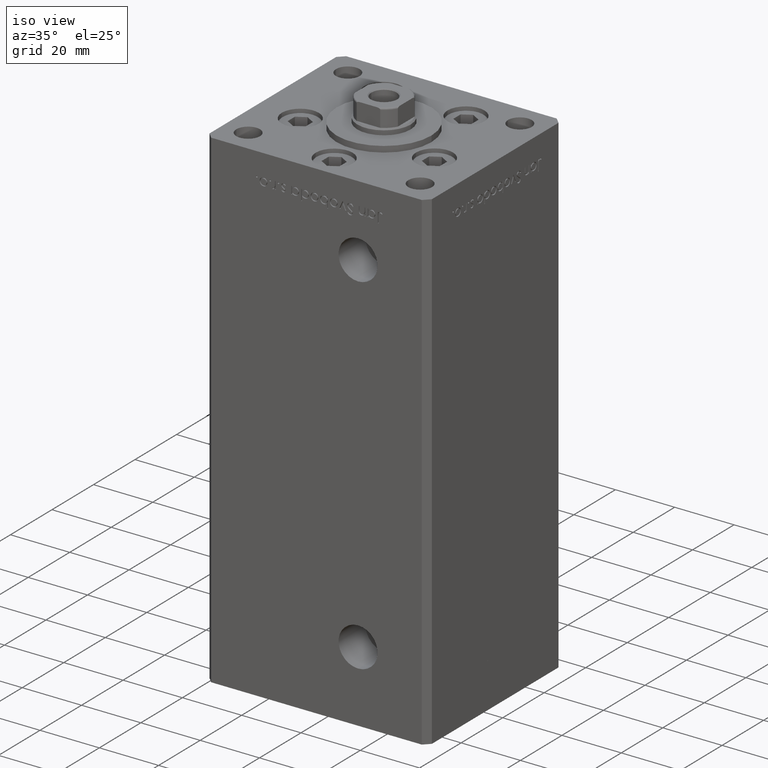
[diagram: clean part render]
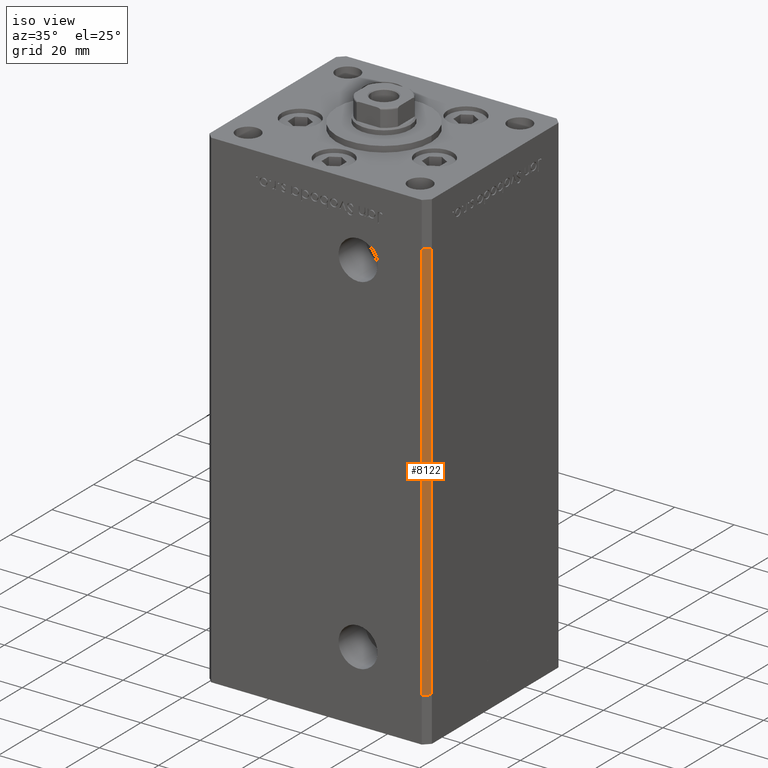
[diagram: same view with one face highlighted and labeled with its STEP entity id]
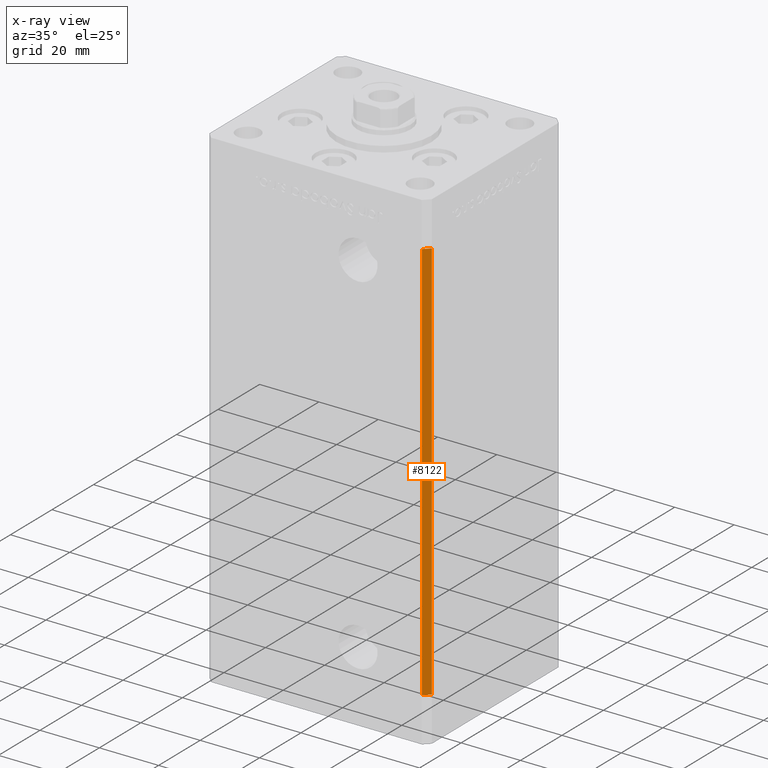
[diagram: x-ray of the same camera — body ghosted, the highlighted face saturated]
A machine part, iso view. The second image highlights one B-rep face of the part: STEP entity #8122.
The next image is the same camera in x-ray: the body ghosted, the highlighted face saturated — about 0% of this face is hidden behind the body in this view.
In plain terms, the highlighted planar face has unit normal (0.7071, -0.7071, 0).
Its self-contained STEP definition (entity closure, byte-faithful):
#392 = ORIENTED_EDGE ( 'NONE', *, *, #38365, .F. ) ;
#1659 = EDGE_CURVE ( 'NONE', #46994, #32461, #43990, .T. ) ;
#3333 = DIRECTION ( 'NONE',  ( -0.7071067811865474617, -0.7071067811865474617, 0.000000000000000000 ) ) ;
#3553 = CARTESIAN_POINT ( 'NONE',  ( 35.49999999999999289, -32.50000000000000000, 0.000000000000000000 ) ) ;
#7086 = EDGE_LOOP ( 'NONE', ( #392, #30868, #18785, #48695 ) ) ;
#8122 = ADVANCED_FACE ( 'NONE', ( #38221 ), #18179, .T. ) ;
#10365 = CARTESIAN_POINT ( 'NONE',  ( 37.49999999999999289, -30.50000000000000000, 136.0000000000000000 ) ) ;
#11020 = EDGE_CURVE ( 'NONE', #46994, #31303, #42610, .T. ) ;
#14407 = VERTEX_POINT ( 'NONE', #3553 ) ;
#14636 = DIRECTION ( 'NONE',  ( -0.000000000000000000, -0.000000000000000000, -1.000000000000000000 ) ) ;
#16767 = VECTOR ( 'NONE', #14636, 1000.000000000000000 ) ;
#18179 = PLANE ( 'NONE',  #18385 ) ;
#18385 = AXIS2_PLACEMENT_3D ( 'NONE', #46942, #18959, #35044 ) ;
#18785 = ORIENTED_EDGE ( 'NONE', *, *, #1659, .T. ) ;
#18959 = DIRECTION ( 'NONE',  ( 0.7071067811865475727, -0.7071067811865475727, 0.000000000000000000 ) ) ;
#20629 = VECTOR ( 'NONE', #31985, 1000.000000000000114 ) ;
#22177 = LINE ( 'NONE', #29313, #33204 ) ;
#22550 = CARTESIAN_POINT ( 'NONE',  ( 35.49999999999999289, -32.50000000000000000, 136.0000000000000000 ) ) ;
#28535 = LINE ( 'NONE', #52065, #20629 ) ;
#29313 = CARTESIAN_POINT ( 'NONE',  ( 35.49999999999999289, -32.50000000000000000, 136.0000000000000000 ) ) ;
#30164 = VECTOR ( 'NONE', #3333, 1000.000000000000114 ) ;
#30868 = ORIENTED_EDGE ( 'NONE', *, *, #11020, .F. ) ;
#31303 = VERTEX_POINT ( 'NONE', #48776 ) ;
#31985 = DIRECTION ( 'NONE',  ( -0.7071067811865474617, -0.7071067811865474617, 0.000000000000000000 ) ) ;
#32461 = VERTEX_POINT ( 'NONE', #22550 ) ;
#33204 = VECTOR ( 'NONE', #33770, 1000.000000000000000 ) ;
#33770 = DIRECTION ( 'NONE',  ( -0.000000000000000000, -0.000000000000000000, -1.000000000000000000 ) ) ;
#34666 = CARTESIAN_POINT ( 'NONE',  ( 37.49999999999999289, -30.50000000000000000, 136.0000000000000000 ) ) ;
#35044 = DIRECTION ( 'NONE',  ( 0.7071067811865474617, 0.7071067811865474617, 0.000000000000000000 ) ) ;
#38221 = FACE_OUTER_BOUND ( 'NONE', #7086, .T. ) ;
#38365 = EDGE_CURVE ( 'NONE', #31303, #14407, #28535, .T. ) ;
#39231 = CARTESIAN_POINT ( 'NONE',  ( 37.49999999999999289, -30.50000000000000000, 136.0000000000000000 ) ) ;
#42610 = LINE ( 'NONE', #34666, #16767 ) ;
#43990 = LINE ( 'NONE', #39231, #30164 ) ;
#46942 = CARTESIAN_POINT ( 'NONE',  ( 37.49999999999999289, -30.50000000000000000, 136.0000000000000000 ) ) ;
#46994 = VERTEX_POINT ( 'NONE', #10365 ) ;
#48332 = EDGE_CURVE ( 'NONE', #32461, #14407, #22177, .T. ) ;
#48695 = ORIENTED_EDGE ( 'NONE', *, *, #48332, .T. ) ;
#48776 = CARTESIAN_POINT ( 'NONE',  ( 37.49999999999999289, -30.50000000000000000, 0.000000000000000000 ) ) ;
#52065 = CARTESIAN_POINT ( 'NONE',  ( 37.49999999999999289, -30.50000000000000000, 0.000000000000000000 ) ) ;